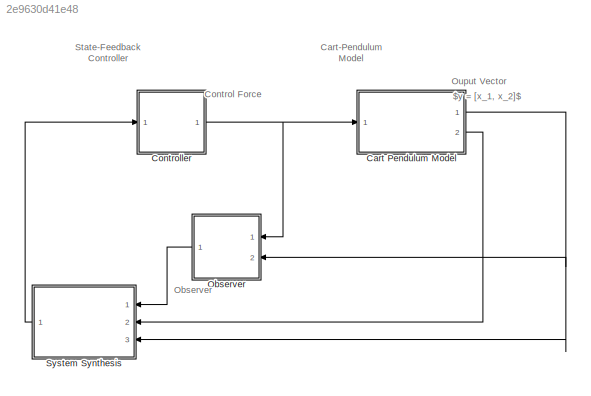
MODEL slx_2e9630d41e48
KIND model
CONFIG AbsTol = auto
CONFIG EnableMultiTasking = off
CONFIG FixedStep = auto
CONFIG MaxStep = auto
CONFIG MinStep = auto
CONFIG RelTol = 1e-3
CONFIG SampleTimeConstraint = Unconstrained
CONFIG Solver = ode4
CONFIG SolverName = ode4
CONFIG StartTime = 0.0
CONFIG StopTime = 10.0
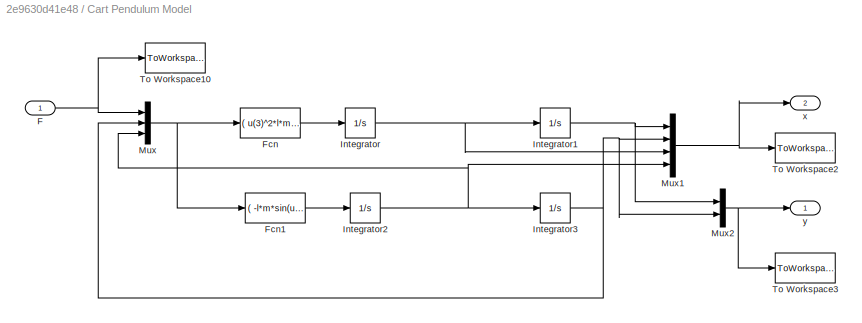
BLOCK [SubSystem] Cart Pendulum Model
  Ports = [1, 2]
  RequestExecContextInheritance = off
BLOCK [Inport] Cart Pendulum Model/F
BLOCK [Fcn] Cart Pendulum Model/Fcn
  Expr = (  u(3)^2*l*m*sin(u(2))-g*m*sin(u(2))*cos(u(2))+u(1)) / ( Mc+m-m*cos(u(2))^2 )
BLOCK [Fcn] Cart Pendulum Model/Fcn1
  Expr = (  -l*m*sin(u(2))*cos(u(2)) *u(3)^2   + g*(Mc+m)*sin(u(2)) - cos(u(2))*u(1)  ) / ( (Mc+m-m*cos(u(2))^2)*l )
BLOCK [Integrator] Cart Pendulum Model/Integrator
  InitialCondition = initial_conditions(3)
  Ports = [1, 1]
BLOCK [Integrator] Cart Pendulum Model/Integrator1
  InitialCondition = initial_conditions(1)
  Ports = [1, 1]
BLOCK [Integrator] Cart Pendulum Model/Integrator2
  InitialCondition = initial_conditions(4)
  Ports = [1, 1]
BLOCK [Integrator] Cart Pendulum Model/Integrator3
  InitialCondition = initial_conditions(2)
  Ports = [1, 1]
BLOCK [Mux] Cart Pendulum Model/Mux
  DisplayOption = bar
  Inputs = 3
  Ports = [3, 1]
BLOCK [Mux] Cart Pendulum Model/Mux1
  DisplayOption = bar
  Ports = [4, 1]
BLOCK [Mux] Cart Pendulum Model/Mux2
  DisplayOption = bar
  Inputs = 2
  Ports = [2, 1]
BLOCK [ToWorkspace] Cart Pendulum Model/To Workspace10
  MaxDataPoints = inf
  Ports = [1]
  SampleTime = -1
  VariableName = F
BLOCK [ToWorkspace] Cart Pendulum Model/To Workspace2
  MaxDataPoints = inf
  Ports = [1]
  SampleTime = -1
  VariableName = x
BLOCK [ToWorkspace] Cart Pendulum Model/To Workspace3
  MaxDataPoints = inf
  Ports = [1]
  SampleTime = -1
  VariableName = y
BLOCK [Outport] Cart Pendulum Model/x
  Port = 2
BLOCK [Outport] Cart Pendulum Model/y
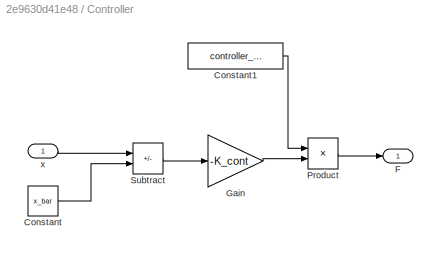
BLOCK [SubSystem] Controller
  Ports = [1, 1]
  RequestExecContextInheritance = off
BLOCK [Constant] Controller/Constant
  Value = x_bar
BLOCK [Constant] Controller/Constant1
  Value = controller_enabled
BLOCK [Outport] Controller/F
BLOCK [Gain] Controller/Gain
  Gain = -K_cont
  Multiplication = Matrix(K*u)
BLOCK [Product] Controller/Product
  Ports = [2, 1]
BLOCK [Sum] Controller/Subtract
  IconShape = rectangular
  Inputs = +-
  Ports = [2, 1]
BLOCK [Inport] Controller/x
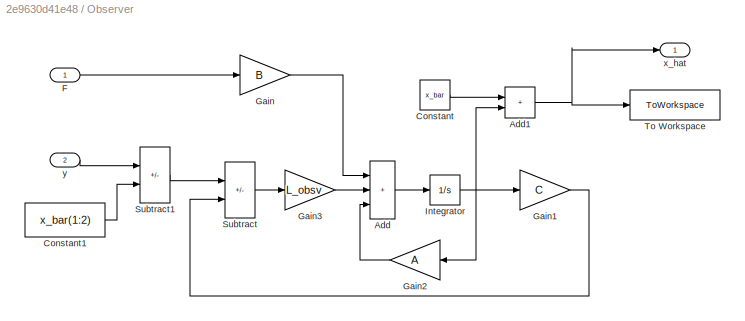
BLOCK [SubSystem] Observer
  Ports = [2, 1]
  RequestExecContextInheritance = off
BLOCK [Sum] Observer/Add
  IconShape = rectangular
  Inputs = 3
  Ports = [3, 1]
BLOCK [Sum] Observer/Add1
  IconShape = rectangular
  Ports = [2, 1]
BLOCK [Constant] Observer/Constant
  Value = x_bar
BLOCK [Constant] Observer/Constant1
  Value = x_bar(1:2)
BLOCK [Inport] Observer/F
BLOCK [Gain] Observer/Gain
  Gain = B
  Multiplication = Matrix(K*u)
BLOCK [Gain] Observer/Gain1
  Gain = C
  Multiplication = Matrix(K*u)
BLOCK [Gain] Observer/Gain2
  Gain = A
  Multiplication = Matrix(K*u)
  NameLocation = top
BLOCK [Gain] Observer/Gain3
  Gain = L_obsv
  Multiplication = Matrix(K*u)
BLOCK [Integrator] Observer/Integrator
  Ports = [1, 1]
BLOCK [Sum] Observer/Subtract
  IconShape = rectangular
  Inputs = +-
  Ports = [2, 1]
BLOCK [Sum] Observer/Subtract1
  IconShape = rectangular
  Inputs = +-
  Ports = [2, 1]
BLOCK [ToWorkspace] Observer/To Workspace
  FixptAsFi = on
  MaxDataPoints = inf
  Ports = [1]
  SampleTime = -1
  VariableName = x_hat
BLOCK [Outport] Observer/x_hat
BLOCK [Inport] Observer/y
  Port = 2
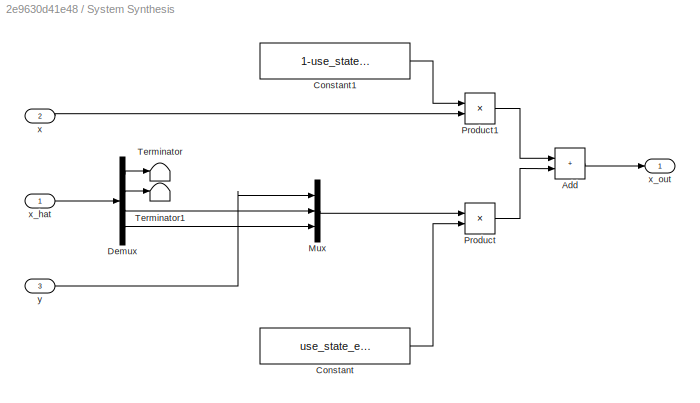
BLOCK [SubSystem] System Synthesis
  Ports = [3, 1]
  RequestExecContextInheritance = off
BLOCK [Sum] System Synthesis/Add
  IconShape = rectangular
  Ports = [2, 1]
BLOCK [Constant] System Synthesis/Constant
  Value = use_state_estimates
BLOCK [Constant] System Synthesis/Constant1
  Value = 1-use_state_estimates
BLOCK [Demux] System Synthesis/Demux
  Ports = [1, 4]
BLOCK [Mux] System Synthesis/Mux
  DisplayOption = bar
  Inputs = 3
  Ports = [3, 1]
BLOCK [Product] System Synthesis/Product
  Ports = [2, 1]
BLOCK [Product] System Synthesis/Product1
  Ports = [2, 1]
BLOCK [Terminator] System Synthesis/Terminator
BLOCK [Terminator] System Synthesis/Terminator1
BLOCK [Inport] System Synthesis/x
  Port = 2
BLOCK [Inport] System Synthesis/x_hat
BLOCK [Outport] System Synthesis/x_out
BLOCK [Inport] System Synthesis/y
  Port = 3
ANNOTATION (root): Cart-Pendulum Model
ANNOTATION (root): State-Feedback Controller
ANNOTATION (root): Observer
ANNOTATION (root): Ouput Vector
ANNOTATION (root): Control Force
ANNOTATION (root): $y = [x_1, x_2]$
NET Cart Pendulum Model/F:1 -> Cart Pendulum Model/Mux:1, Cart Pendulum Model/To Workspace10:1
LINE Cart Pendulum Model/Fcn1:1 -> Cart Pendulum Model/Integrator2:1
LINE Cart Pendulum Model/Fcn:1 -> Cart Pendulum Model/Integrator:1
NET Cart Pendulum Model/Integrator1:1 -> Cart Pendulum Model/Mux1:1, Cart Pendulum Model/Mux2:1
NET Cart Pendulum Model/Integrator2:1 -> Cart Pendulum Model/Integrator3:1, Cart Pendulum Model/Mux1:4, Cart Pendulum Model/Mux:3
NET Cart Pendulum Model/Integrator3:1 -> Cart Pendulum Model/Mux1:2, Cart Pendulum Model/Mux2:2, Cart Pendulum Model/Mux:2
NET Cart Pendulum Model/Integrator:1 -> Cart Pendulum Model/Integrator1:1, Cart Pendulum Model/Mux1:3
NET Cart Pendulum Model/Mux1:1 -> Cart Pendulum Model/To Workspace2:1, Cart Pendulum Model/x:1
NET Cart Pendulum Model/Mux2:1 -> Cart Pendulum Model/To Workspace3:1, Cart Pendulum Model/y:1
NET Cart Pendulum Model/Mux:1 -> Cart Pendulum Model/Fcn1:1, Cart Pendulum Model/Fcn:1
NET Cart Pendulum Model:1 -> Observer:2, System Synthesis:3
LINE Cart Pendulum Model:2 -> System Synthesis:2
LINE Controller/Constant1:1 -> Controller/Product:1
LINE Controller/Constant:1 -> Controller/Subtract:2
LINE Controller/Gain:1 -> Controller/Product:2
LINE Controller/Product:1 -> Controller/F:1
LINE Controller/Subtract:1 -> Controller/Gain:1
LINE Controller/x:1 -> Controller/Subtract:1
NET Controller:1 -> Cart Pendulum Model:1, Observer:1
NET Observer/Add1:1 -> Observer/To Workspace:1, Observer/x_hat:1
LINE Observer/Add:1 -> Observer/Integrator:1
LINE Observer/Constant1:1 -> Observer/Subtract1:2
LINE Observer/Constant:1 -> Observer/Add1:1
LINE Observer/F:1 -> Observer/Gain:1
LINE Observer/Gain1:1 -> Observer/Subtract:2
LINE Observer/Gain2:1 -> Observer/Add:3
LINE Observer/Gain3:1 -> Observer/Add:2
LINE Observer/Gain:1 -> Observer/Add:1
NET Observer/Integrator:1 -> Observer/Add1:2, Observer/Gain1:1, Observer/Gain2:1
LINE Observer/Subtract1:1 -> Observer/Subtract:1
LINE Observer/Subtract:1 -> Observer/Gain3:1
LINE Observer/y:1 -> Observer/Subtract1:1
LINE Observer:1 -> System Synthesis:1
LINE System Synthesis/Add:1 -> System Synthesis/x_out:1
LINE System Synthesis/Constant1:1 -> System Synthesis/Product1:1
LINE System Synthesis/Constant:1 -> System Synthesis/Product:2
LINE System Synthesis/Demux:1 -> System Synthesis/Terminator:1
LINE System Synthesis/Demux:2 -> System Synthesis/Terminator1:1
LINE System Synthesis/Demux:3 -> System Synthesis/Mux:2
LINE System Synthesis/Demux:4 -> System Synthesis/Mux:3
LINE System Synthesis/Mux:1 -> System Synthesis/Product:1
LINE System Synthesis/Product1:1 -> System Synthesis/Add:1
LINE System Synthesis/Product:1 -> System Synthesis/Add:2
LINE System Synthesis/x:1 -> System Synthesis/Product1:2
LINE System Synthesis/x_hat:1 -> System Synthesis/Demux:1
LINE System Synthesis/y:1 -> System Synthesis/Mux:1
LINE System Synthesis:1 -> Controller:1
note: NET lines group one-source signal fan-out (src -> all destinations, sorted); 1:1 wires keep LINE
